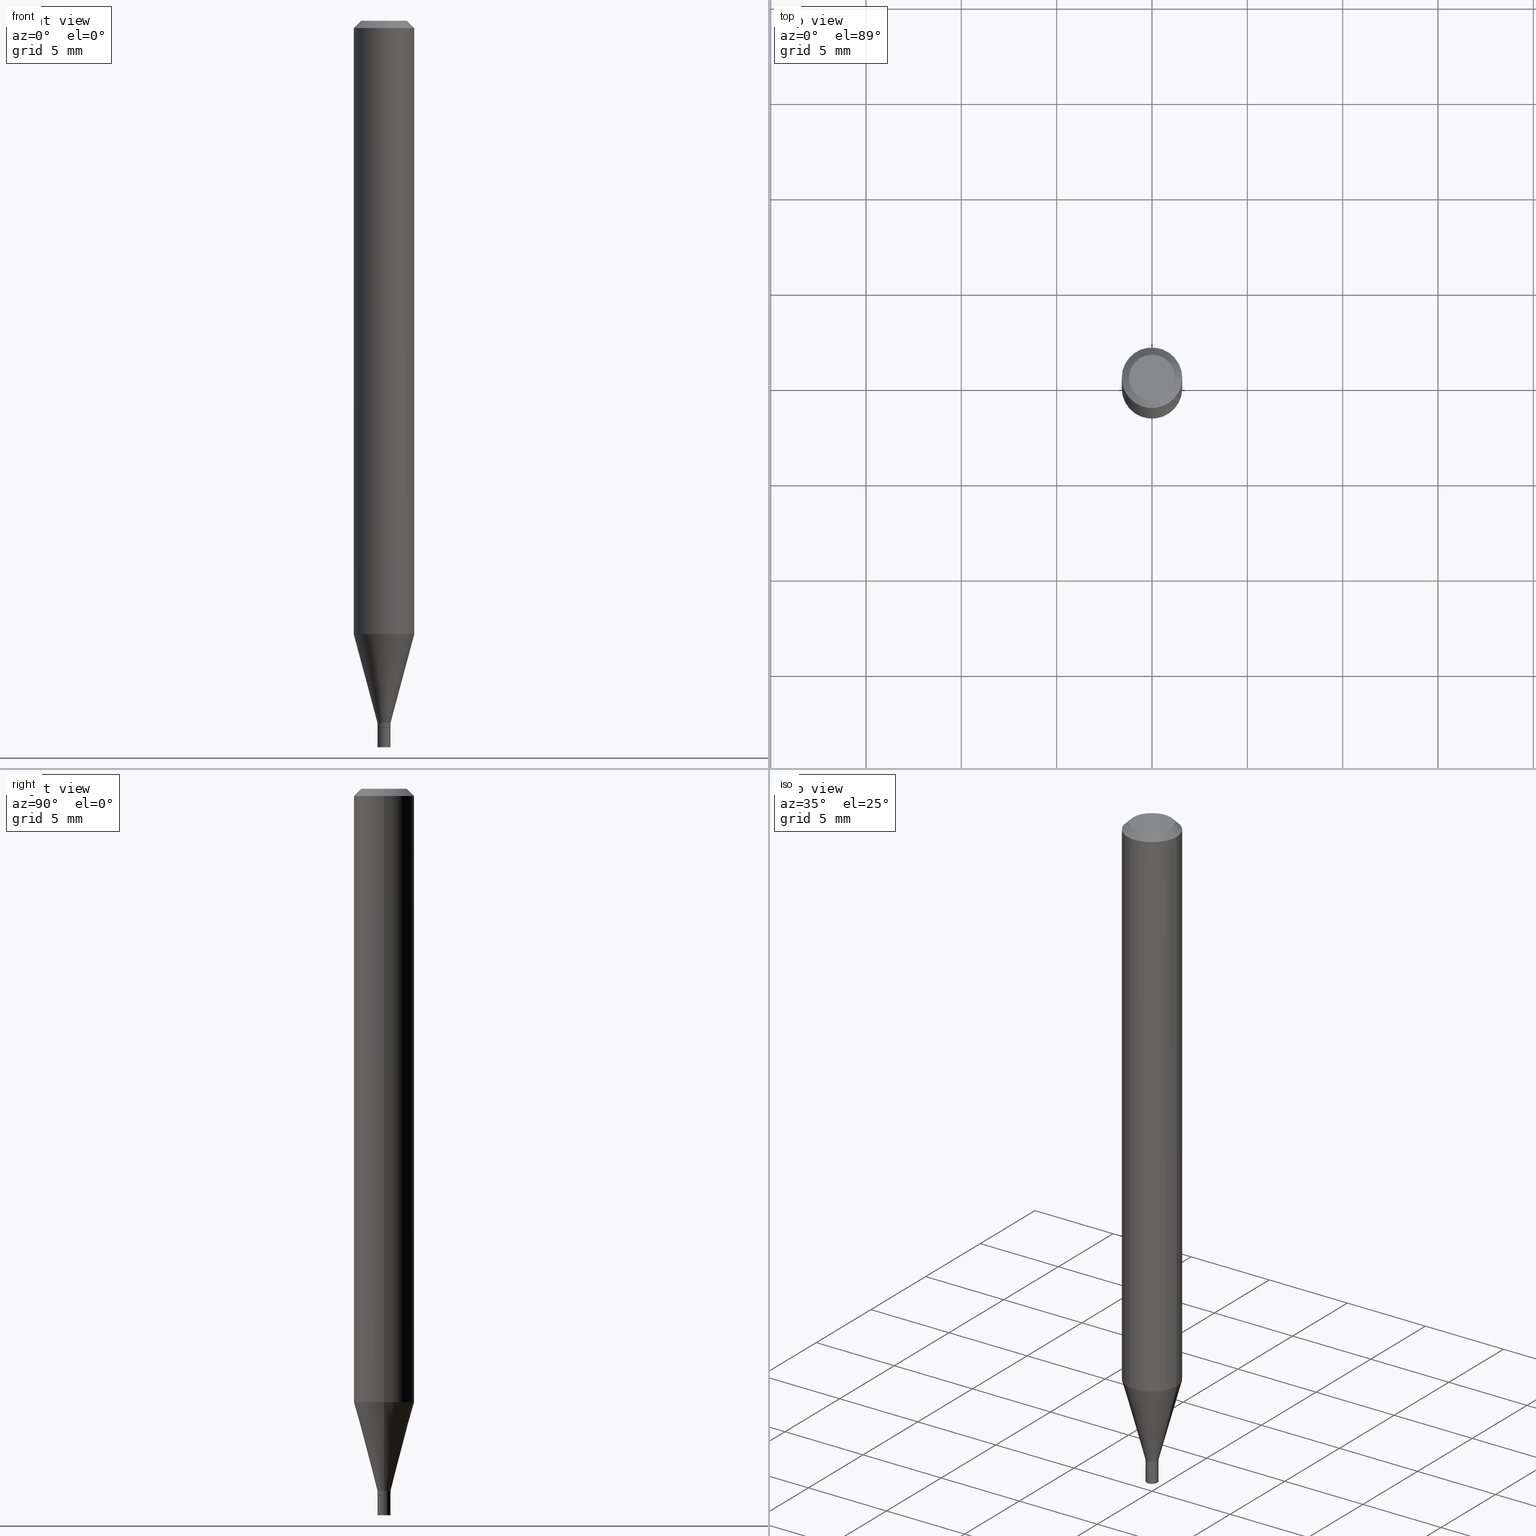
[diagram: canonical four-view strip — front | top / right | iso, engineering-drawing reading convention]
A machine part, canonical four-view strip (front | top / right | iso — engineering-drawing reading convention). The complete STEP part file that produces these views, byte-faithful:
ISO-10303-21;
HEADER;
FILE_DESCRIPTION (( 'STEP AP203' ),
    '1' );
FILE_NAME ('01107.STEP',
    '2024-03-19T22:58:30',
    ( '' ),
    ( '' ),
    'SwSTEP 2.0',
    'SolidWorks 2023',
    '' );
FILE_SCHEMA (( 'CONFIG_CONTROL_DESIGN' ));
ENDSEC;

DATA;
#1 = DIRECTION ( 'NONE',  ( 1.000000000000000000, -6.982962677686265133E-15, 0.000000000000000000 ) ) ;
#2 = ORIENTED_EDGE ( 'NONE', *, *, #55, .F. ) ;
#3 = CARTESIAN_POINT ( 'NONE',  ( 3.569161722627207033E-29, -5.095817014041571654E-15, -1.459500000000000020 ) ) ;
#4 = EDGE_LOOP ( 'NONE', ( #435, #453, #202, #21 ) ) ;
#5 = CARTESIAN_POINT ( 'NONE',  ( 0.000000000000000000, 0.000000000000000000, 0.000000000000000000 ) ) ;
#6 = CARTESIAN_POINT ( 'NONE',  ( -0.01300000000000000114, -5.000797231218647347E-15, -1.459500000000000020 ) ) ;
#7 = AXIS2_PLACEMENT_3D ( 'NONE', #79, #118, #369 ) ;
#8 = DIRECTION ( 'NONE',  ( 1.000000000000000000, -6.982962677686257244E-15, 0.000000000000000000 ) ) ;
#9 = MANIFOLD_SOLID_BREP ( 'Body-Move/Copy2[2]', #321 ) ;
#10 = ADVANCED_FACE ( 'NONE', ( #304 ), #454, .F. ) ;
#11 = VERTEX_POINT ( 'NONE', #436 ) ;
#12 = DATE_AND_TIME ( #47, #28 ) ;
#13 = LOCAL_TIME ( 18, 58, 29.00000000000000000, #299 ) ;
#14 = DIRECTION ( 'NONE',  ( -2.445468806185136597E-29, 3.491481338843145583E-15, 1.000000000000000000 ) ) ;
#15 = ORIENTED_EDGE ( 'NONE', *, *, #230, .F. ) ;
#16 = ADVANCED_FACE ( 'NONE', ( #215 ), #207, .T. ) ;
#17 = VERTEX_POINT ( 'NONE', #97 ) ;
#18 = CALENDAR_DATE ( 2024, 19, 3 ) ;
#19 = VECTOR ( 'NONE', #440, 39.37007874015748854 ) ;
#20 = ORIENTED_EDGE ( 'NONE', *, *, #203, .T. ) ;
#21 = ORIENTED_EDGE ( 'NONE', *, *, #338, .F. ) ;
#22 = COORDINATED_UNIVERSAL_TIME_OFFSET ( 5, 0, .BEHIND. ) ;
#23 = EDGE_CURVE ( 'NONE', #17, #281, #437, .T. ) ;
#24 = EDGE_LOOP ( 'NONE', ( #168, #382, #165, #195 ) ) ;
#25 = DIRECTION ( 'NONE',  ( 1.000000000000000000, -6.982962677686266711E-15, 0.000000000000000000 ) ) ;
#26 = AXIS2_PLACEMENT_3D ( 'NONE', #114, #33, #354 ) ;
#27 = CONICAL_SURFACE ( 'NONE', #35, 0.01300000000000000114, 0.7853981633974718157 ) ;
#28 = LOCAL_TIME ( 18, 58, 29.00000000000000000, #443 ) ;
#29 = DIRECTION ( 'NONE',  ( 1.000000000000000000, -6.982962677686262766E-15, 0.000000000000000000 ) ) ;
#30 = CARTESIAN_POINT ( 'NONE',  ( 3.544707034565356049E-29, -5.060902200653140005E-15, -1.449500000000000233 ) ) ;
#31 = DIRECTION ( 'NONE',  ( 1.000000000000000000, -6.982962677686257244E-15, 0.000000000000000000 ) ) ;
#32 = CARTESIAN_POINT ( 'NONE',  ( -0.01349999999999999985, -5.070596241825531305E-15, -1.500000000000000222 ) ) ;
#33 = DIRECTION ( 'NONE',  ( -2.445468806185136597E-29, 3.491481338843145583E-15, 1.000000000000000000 ) ) ;
#34 = PERSON_AND_ORGANIZATION_ROLE ( 'design_supplier' ) ;
#35 = AXIS2_PLACEMENT_3D ( 'NONE', #251, #287, #8 ) ;
#36 = DIRECTION ( 'NONE',  ( 1.000000000000000000, -6.982962677686262766E-15, 0.000000000000000000 ) ) ;
#37 = EDGE_LOOP ( 'NONE', ( #159, #229, #182, #133 ) ) ;
#38 = CARTESIAN_POINT ( 'NONE',  ( 0.06250000000000000000, -4.888073874380388472E-16, -0.01499999999999999944 ) ) ;
#39 = CC_DESIGN_PERSON_AND_ORGANIZATION_ASSIGNMENT ( #303, #201, ( #238 ) ) ;
#40 = PERSON_AND_ORGANIZATION ( #335, #120 ) ;
#41 = CARTESIAN_POINT ( 'NONE',  ( -1.537852810144857008E-44, 2.195646239660832005E-30, 6.288580767234829712E-16 ) ) ;
#42 = VECTOR ( 'NONE', #391, 39.37007874015748143 ) ;
#43 = AXIS2_PLACEMENT_3D ( 'NONE', #220, #158, #257 ) ;
#44 = EDGE_CURVE ( 'NONE', #205, #11, #82, .T. ) ;
#45 = PLANE ( 'NONE',  #43 ) ;
#46 = CARTESIAN_POINT ( 'NONE',  ( 3.668203209277705088E-31, -5.237222008264718399E-17, -0.01499999999999999944 ) ) ;
#47 = CALENDAR_DATE ( 2024, 19, 3 ) ;
#48 = CARTESIAN_POINT ( 'NONE',  ( -0.01349999999999999985, -5.070596241825531305E-15, -1.459500000000000020 ) ) ;
#49 = AXIS2_PLACEMENT_3D ( 'NONE', #107, #235, #103 ) ;
#50 = SECURITY_CLASSIFICATION ( '', '', #132 ) ;
#51 = ORIENTED_EDGE ( 'NONE', *, *, #328, .T. ) ;
#52 = CC_DESIGN_PERSON_AND_ORGANIZATION_ASSIGNMENT ( #179, #379, ( #50 ) ) ;
#53 = VERTEX_POINT ( 'NONE', #386 ) ;
#54 = ORIENTED_EDGE ( 'NONE', *, *, #216, .T. ) ;
#55 = EDGE_CURVE ( 'NONE', #281, #17, #183, .T. ) ;
#56 = ORIENTED_EDGE ( 'NONE', *, *, #452, .T. ) ;
#57 = EDGE_LOOP ( 'NONE', ( #88, #2 ) ) ;
#58 = CARTESIAN_POINT ( 'NONE',  ( -0.01300000000000000114, -5.003446458392758548E-15, -1.459500000000000020 ) ) ;
#59 = ORIENTED_EDGE ( 'NONE', *, *, #422, .F. ) ;
#60 = CLOSED_SHELL ( 'NONE', ( #16, #10, #225, #172 ) ) ;
#61 = CIRCLE ( 'NONE', #372, 0.04749999999999999362 ) ;
#62 = FACE_OUTER_BOUND ( 'NONE', #37, .T. ) ;
#63 = CC_DESIGN_DATE_AND_TIME_ASSIGNMENT ( #12, #418, ( #297 ) ) ;
#64 = CARTESIAN_POINT ( 'NONE',  ( 9.426999614880027831E-17, 0.01349999999999490323, -1.459500000000000020 ) ) ;
#65 = PRODUCT_DEFINITION_SHAPE ( 'NONE', 'NONE',  #297 ) ;
#66 = APPROVAL_ROLE ( '' ) ;
#67 = CARTESIAN_POINT ( 'NONE',  ( 3.097502956747977268E-29, -4.422413298891320100E-15, -1.266629510429125416 ) ) ;
#68 = DIRECTION ( 'NONE',  ( -2.445468806185136597E-29, 3.491481338843145583E-15, 1.000000000000000000 ) ) ;
#69 = AXIS2_PLACEMENT_3D ( 'NONE', #398, #288, #259 ) ;
#70 = FACE_OUTER_BOUND ( 'NONE', #413, .T. ) ;
#71 = EDGE_CURVE ( 'NONE', #374, #196, #396, .T. ) ;
#72 = PERSON_AND_ORGANIZATION ( #335, #120 ) ;
#73 = DIRECTION ( 'NONE',  ( -2.445468806185136597E-29, 3.491481338843145583E-15, 1.000000000000000000 ) ) ;
#74 = CARTESIAN_POINT ( 'NONE',  ( 3.668203209277705088E-31, -5.237222008264718399E-17, -0.01499999999999999944 ) ) ;
#75 = LINE ( 'NONE', #442, #285 ) ;
#76 = AXIS2_PLACEMENT_3D ( 'NONE', #173, #432, #1 ) ;
#77 = CARTESIAN_POINT ( 'NONE',  ( 3.544707034565356049E-29, -5.060902200653140005E-15, -1.449500000000000233 ) ) ;
#78 = FACE_OUTER_BOUND ( 'NONE', #341, .T. ) ;
#79 = CARTESIAN_POINT ( 'NONE',  ( 3.567938988224114792E-29, -5.094071273372150151E-15, -1.459000000000000297 ) ) ;
#80 = EDGE_LOOP ( 'NONE', ( #56, #87, #301, #226 ) ) ;
#81 = CYLINDRICAL_SURFACE ( 'NONE', #463, 0.01349999999999992005 ) ;
#82 = CIRCLE ( 'NONE', #124, 0.06250000000000000000 ) ;
#83 = ORIENTED_EDGE ( 'NONE', *, *, #338, .T. ) ;
#84 = ADVANCED_FACE ( 'NONE', ( #359 ), #457, .T. ) ;
#85 = AXIS2_PLACEMENT_3D ( 'NONE', #46, #244, #286 ) ;
#86 = LINE ( 'NONE', #446, #385 ) ;
#87 = ORIENTED_EDGE ( 'NONE', *, *, #197, .T. ) ;
#88 = ORIENTED_EDGE ( 'NONE', *, *, #23, .F. ) ;
#89 = APPROVAL ( #100, 'UNSPECIFIED' ) ;
#90 = ORIENTED_EDGE ( 'NONE', *, *, #328, .F. ) ;
#91 = CIRCLE ( 'NONE', #49, 0.01349999999999992005 ) ;
#92 = CC_DESIGN_SECURITY_CLASSIFICATION ( #50, ( #238 ) ) ;
#93 = ORIENTED_EDGE ( 'NONE', *, *, #191, .T. ) ;
#94 = CARTESIAN_POINT ( 'NONE',  ( 0.01349999999999999985, -5.190087010190336792E-15, -1.459500000000000020 ) ) ;
#95 = ORIENTED_EDGE ( 'NONE', *, *, #263, .T. ) ;
#96 =( NAMED_UNIT ( * ) SI_UNIT ( $, .STERADIAN. ) SOLID_ANGLE_UNIT ( ) );
#97 = CARTESIAN_POINT ( 'NONE',  ( 0.01300000000000000114, -5.186595528851492996E-15, -1.459500000000000020 ) ) ;
#98 = EDGE_CURVE ( 'NONE', #11, #205, #119, .T. ) ;
#99 = CIRCLE ( 'NONE', #76, 0.01349999999999992352 ) ;
#100 = APPROVAL_STATUS ( 'not_yet_approved' ) ;
#101 = DIRECTION ( 'NONE',  ( -2.438088387897960049E-29, 3.491481338843145188E-15, 1.000000000000000000 ) ) ;
#102 = PRODUCT_RELATED_PRODUCT_CATEGORY ( 'detail', '', ( #143 ) ) ;
#103 = DIRECTION ( 'NONE',  ( 1.000000000000000000, -6.982962677686266711E-15, 0.000000000000000000 ) ) ;
#104 = SHAPE_DEFINITION_REPRESENTATION ( #65, #232 ) ;
#105 = CARTESIAN_POINT ( 'NONE',  ( -0.01349999999999992352, -4.998148004044537724E-15, -1.459000000000000297 ) ) ;
#106 = VERTEX_POINT ( 'NONE', #38 ) ;
#107 = CARTESIAN_POINT ( 'NONE',  ( 3.544707034565356049E-29, -5.060902200653140005E-15, -1.449500000000000233 ) ) ;
#108 = ADVANCED_FACE ( 'NONE', ( #428 ), #331, .T. ) ;
#109 = COORDINATED_UNIVERSAL_TIME_OFFSET ( 5, 0, .BEHIND. ) ;
#110 = CARTESIAN_POINT ( 'NONE',  ( 3.569161722627207033E-29, -5.095817014041571654E-15, -1.459500000000000020 ) ) ;
#111 = VERTEX_POINT ( 'NONE', #240 ) ;
#112 = DIRECTION ( 'NONE',  ( 1.000000000000000000, -6.982962677686266711E-15, 0.000000000000000000 ) ) ;
#113 = AXIS2_PLACEMENT_3D ( 'NONE', #64, #317, #283 ) ;
#114 = CARTESIAN_POINT ( 'NONE',  ( 0.000000000000000000, 0.000000000000000000, 0.000000000000000000 ) ) ;
#115 = FACE_OUTER_BOUND ( 'NONE', #380, .T. ) ;
#116 = EDGE_CURVE ( 'NONE', #128, #308, #99, .T. ) ;
#117 = DIRECTION ( 'NONE',  ( -2.445468806185136597E-29, 3.491481338843145583E-15, 1.000000000000000000 ) ) ;
#118 = DIRECTION ( 'NONE',  ( -2.445468806185136597E-29, 3.491481338843145583E-15, 1.000000000000000000 ) ) ;
#119 = CIRCLE ( 'NONE', #337, 0.06250000000000000000 ) ;
#120 = ORGANIZATION ( 'UNSPECIFIED', 'UNSPECIFIED', '' ) ;
#121 = EDGE_LOOP ( 'NONE', ( #54, #221 ) ) ;
#122 = ADVANCED_FACE ( 'NONE', ( #210 ), #309, .T. ) ;
#123 = PERSON_AND_ORGANIZATION_ROLE ( 'design_owner' ) ;
#124 = AXIS2_PLACEMENT_3D ( 'NONE', #465, #247, #29 ) ;
#125 = VERTEX_POINT ( 'NONE', #389 ) ;
#126 = VECTOR ( 'NONE', #214, 39.37007874015748854 ) ;
#127 = APPROVAL_PERSON_ORGANIZATION ( #164, #252, #334 ) ;
#128 = VERTEX_POINT ( 'NONE', #105 ) ;
#129 = DATE_AND_TIME ( #18, #13 ) ;
#130 = ADVANCED_FACE ( 'NONE', ( #62 ), #345, .T. ) ;
#131 = EDGE_LOOP ( 'NONE', ( #373, #163, #20, #292 ) ) ;
#132 = SECURITY_CLASSIFICATION_LEVEL ( 'unclassified' ) ;
#133 = ORIENTED_EDGE ( 'NONE', *, *, #116, .F. ) ;
#134 = DATE_TIME_ROLE ( 'classification_date' ) ;
#135 = AXIS2_PLACEMENT_3D ( 'NONE', #3, #350, #394 ) ;
#136 = CARTESIAN_POINT ( 'NONE',  ( 3.668203209277704895E-29, -5.237222008264718177E-15, -1.500000000000000222 ) ) ;
#137 = ORIENTED_EDGE ( 'NONE', *, *, #456, .T. ) ;
#138 =( CONVERSION_BASED_UNIT ( 'INCH', #313 ) LENGTH_UNIT ( ) NAMED_UNIT ( #194 ) );
#139 = CC_DESIGN_PERSON_AND_ORGANIZATION_ASSIGNMENT ( #415, #227, ( #297 ) ) ;
#140 = DIRECTION ( 'NONE',  ( -2.445468806185136597E-29, 3.491481338843145583E-15, 1.000000000000000000 ) ) ;
#141 = DIRECTION ( 'NONE',  ( -2.445468806185136877E-29, 3.491481338843145188E-15, 1.000000000000000000 ) ) ;
#142 = DIRECTION ( 'NONE',  ( 1.000000000000000000, -6.982962677686265922E-15, 4.876176775795935793E-29 ) ) ;
#143 = PRODUCT ( '01107', '01107', '', ( #322 ) ) ;
#144 = CONICAL_SURFACE ( 'NONE', #85, 0.06250000000000000000, 0.7853981633974274068 ) ;
#145 = CALENDAR_DATE ( 2024, 19, 3 ) ;
#146 = DIRECTION ( 'NONE',  ( 1.000000000000000000, -6.982962677686257244E-15, 0.000000000000000000 ) ) ;
#147 = DIRECTION ( 'NONE',  ( 1.000000000000000000, -6.982962677686266711E-15, 0.000000000000000000 ) ) ;
#148 = FACE_OUTER_BOUND ( 'NONE', #346, .T. ) ;
#149 = CC_DESIGN_APPROVAL ( #252, ( #297 ) ) ;
#150 = AXIS2_PLACEMENT_3D ( 'NONE', #459, #425, #236 ) ;
#151 = DIRECTION ( 'NONE',  ( -2.445468806185136597E-29, 3.491481338843145583E-15, 1.000000000000000000 ) ) ;
#152 = EDGE_CURVE ( 'NONE', #308, #53, #180, .T. ) ;
#153 = CARTESIAN_POINT ( 'NONE',  ( 0.01349999999999999985, -9.426999614876459468E-17, 6.582838647324512550E-31 ) ) ;
#154 = DIRECTION ( 'NONE',  ( 1.000000000000000000, -6.982962677686266711E-15, 0.000000000000000000 ) ) ;
#155 = CYLINDRICAL_SURFACE ( 'NONE', #69, 0.06250000000000000000 ) ;
#156 = CONICAL_SURFACE ( 'NONE', #276, 0.01349999999999992005, 0.2617993877991499629 ) ;
#157 = ADVANCED_FACE ( 'NONE', ( #434 ), #174, .F. ) ;
#158 = DIRECTION ( 'NONE',  ( 2.438088387897960049E-29, -3.491481338843145188E-15, -1.000000000000000000 ) ) ;
#159 = ORIENTED_EDGE ( 'NONE', *, *, #390, .F. ) ;
#160 = MANIFOLD_SOLID_BREP ( 'Body-Move/Copy2[1]', #60 ) ;
#161 = ORIENTED_EDGE ( 'NONE', *, *, #371, .T. ) ;
#162 = AXIS2_PLACEMENT_3D ( 'NONE', #393, #68, #358 ) ;
#163 = ORIENTED_EDGE ( 'NONE', *, *, #98, .T. ) ;
#164 = PERSON_AND_ORGANIZATION ( #335, #120 ) ;
#165 = ORIENTED_EDGE ( 'NONE', *, *, #452, .F. ) ;
#166 = CALENDAR_DATE ( 2024, 19, 3 ) ;
#167 = CYLINDRICAL_SURFACE ( 'NONE', #162, 0.06250000000000000000 ) ;
#168 = ORIENTED_EDGE ( 'NONE', *, *, #230, .T. ) ;
#169 = AXIS2_PLACEMENT_3D ( 'NONE', #400, #325, #333 ) ;
#170 = CIRCLE ( 'NONE', #357, 0.01349999999999992005 ) ;
#171 = DIRECTION ( 'NONE',  ( -0.7071067811865326957, 2.468850131082102049E-15, -0.7071067811865622277 ) ) ;
#172 = ADVANCED_FACE ( 'NONE', ( #70 ), #213, .F. ) ;
#173 = CARTESIAN_POINT ( 'NONE',  ( 3.567938988224114792E-29, -5.094071273372150151E-15, -1.459000000000000297 ) ) ;
#174 = PLANE ( 'NONE',  #377 ) ;
#175 = PERSON_AND_ORGANIZATION ( #335, #120 ) ;
#176 = LINE ( 'NONE', #351, #212 ) ;
#177 = DIRECTION ( 'NONE',  ( -2.445468806185136597E-29, 3.491481338843145583E-15, 1.000000000000000000 ) ) ;
#178 = APPLICATION_PROTOCOL_DEFINITION ( 'international standard', 'config_control_design', 1994, #339 ) ;
#179 = PERSON_AND_ORGANIZATION ( #335, #120 ) ;
#180 = LINE ( 'NONE', #181, #237 ) ;
#181 = CARTESIAN_POINT ( 'NONE',  ( 0.01349999999999992005, -9.426999614876405233E-17, 6.582838647324474890E-31 ) ) ;
#182 = ORIENTED_EDGE ( 'NONE', *, *, #282, .T. ) ;
#183 = CIRCLE ( 'NONE', #449, 0.01300000000000000114 ) ;
#184 = ADVANCED_FACE ( 'NONE', ( #148 ), #155, .T. ) ;
#185 = VECTOR ( 'NONE', #278, 39.37007874015748143 ) ;
#186 = AXIS2_PLACEMENT_3D ( 'NONE', #5, #189, #249 ) ;
#187 = CARTESIAN_POINT ( 'NONE',  ( 3.569161722627207033E-29, -5.095817014041571654E-15, -1.459500000000000020 ) ) ;
#188 = CARTESIAN_POINT ( 'NONE',  ( 0.000000000000000000, 0.000000000000000000, 0.000000000000000000 ) ) ;
#189 = DIRECTION ( 'NONE',  ( 0.000000000000000000, 0.000000000000000000, 1.000000000000000000 ) ) ;
#190 = DIRECTION ( 'NONE',  ( 0.7071067811865642261, -2.468850131082431399E-15, 0.7071067811865309194 ) ) ;
#191 = EDGE_CURVE ( 'NONE', #417, #106, #395, .T. ) ;
#192 = DIRECTION ( 'NONE',  ( -2.445468806185136597E-29, 3.491481338843145583E-15, 1.000000000000000000 ) ) ;
#193 = AXIS2_PLACEMENT_3D ( 'NONE', #74, #151, #154 ) ;
#194 = DIMENSIONAL_EXPONENTS ( 1.000000000000000000, 0.000000000000000000, 0.000000000000000000, 0.000000000000000000, 0.000000000000000000, 0.000000000000000000, 0.000000000000000000 ) ;
#195 = ORIENTED_EDGE ( 'NONE', *, *, #152, .F. ) ;
#196 = VERTEX_POINT ( 'NONE', #48 ) ;
#197 = EDGE_CURVE ( 'NONE', #330, #11, #295, .T. ) ;
#198 = ORIENTED_EDGE ( 'NONE', *, *, #416, .F. ) ;
#199 = CIRCLE ( 'NONE', #464, 0.04749999999999999362 ) ;
#200 = ORIENTED_EDGE ( 'NONE', *, *, #44, .T. ) ;
#201 = PERSON_AND_ORGANIZATION_ROLE ( 'creator' ) ;
#202 = ORIENTED_EDGE ( 'NONE', *, *, #316, .T. ) ;
#203 = EDGE_CURVE ( 'NONE', #205, #106, #447, .T. ) ;
#204 = FACE_OUTER_BOUND ( 'NONE', #131, .T. ) ;
#205 = VERTEX_POINT ( 'NONE', #291 ) ;
#206 =( LENGTH_UNIT ( ) NAMED_UNIT ( * ) SI_UNIT ( $, .METRE. ) );
#207 = CYLINDRICAL_SURFACE ( 'NONE', #26, 0.01349999999999999985 ) ;
#208 = ADVANCED_FACE ( 'NONE', ( #403 ), #45, .F. ) ;
#209 = CARTESIAN_POINT ( 'NONE',  ( 3.569161722627207033E-29, -5.095817014041571654E-15, -1.459500000000000020 ) ) ;
#210 = FACE_OUTER_BOUND ( 'NONE', #24, .T. ) ;
#211 = CARTESIAN_POINT ( 'NONE',  ( -0.01349999999999992005, 9.592326932761295701E-17, -6.640562371844083793E-31 ) ) ;
#212 = VECTOR ( 'NONE', #348, 39.37007874015748854 ) ;
#213 = PLANE ( 'NONE',  #113 ) ;
#214 = DIRECTION ( 'NONE',  ( 0.2588190451025212391, 1.565188264969622362E-15, 0.9659258262890679791 ) ) ;
#215 = FACE_OUTER_BOUND ( 'NONE', #256, .T. ) ;
#216 = EDGE_CURVE ( 'NONE', #111, #420, #61, .T. ) ;
#217 = DIRECTION ( 'NONE',  ( -2.445468806185136877E-29, 3.491481338843145188E-15, 1.000000000000000000 ) ) ;
#218 = CIRCLE ( 'NONE', #401, 0.01349999999999999985 ) ;
#219 = CARTESIAN_POINT ( 'NONE',  ( 0.000000000000000000, 0.000000000000000000, 0.000000000000000000 ) ) ;
#220 = CARTESIAN_POINT ( 'NONE',  ( 3.316907271900976096E-16, 0.04749999999999999362, 1.485836747666920892E-16 ) ) ;
#221 = ORIENTED_EDGE ( 'NONE', *, *, #444, .T. ) ;
#222 = DIRECTION ( 'NONE',  ( -2.445468806185136597E-29, 3.491481338843145583E-15, 1.000000000000000000 ) ) ;
#223 = CIRCLE ( 'NONE', #267, 0.01349999999999999985 ) ;
#224 = ORIENTED_EDGE ( 'NONE', *, *, #375, .T. ) ;
#225 = ADVANCED_FACE ( 'NONE', ( #366 ), #408, .T. ) ;
#226 = ORIENTED_EDGE ( 'NONE', *, *, #364, .F. ) ;
#227 = PERSON_AND_ORGANIZATION_ROLE ( 'creator' ) ;
#228 = VECTOR ( 'NONE', #250, 39.37007874015748143 ) ;
#229 = ORIENTED_EDGE ( 'NONE', *, *, #55, .T. ) ;
#230 = EDGE_CURVE ( 'NONE', #308, #128, #293, .T. ) ;
#231 = ORIENTED_EDGE ( 'NONE', *, *, #23, .T. ) ;
#232 = ADVANCED_BREP_SHAPE_REPRESENTATION ( '01107', ( #160, #9, #186 ), #387 ) ;
#233 = DESIGN_CONTEXT ( 'detailed design', #290, 'design' ) ;
#234 = ORIENTED_EDGE ( 'NONE', *, *, #282, .F. ) ;
#235 = DIRECTION ( 'NONE',  ( -2.445468806185136597E-29, 3.491481338843145583E-15, 1.000000000000000000 ) ) ;
#236 = DIRECTION ( 'NONE',  ( 1.000000000000000000, -6.982962677686267499E-15, 4.876176775795936353E-29 ) ) ;
#237 = VECTOR ( 'NONE', #315, 39.37007874015748143 ) ;
#238 = PRODUCT_DEFINITION_FORMATION_WITH_SPECIFIED_SOURCE ( 'ANY', '', #143, .NOT_KNOWN. ) ;
#239 = APPROVAL_ROLE ( '' ) ;
#240 = CARTESIAN_POINT ( 'NONE',  ( -0.04749999999999999362, 3.578768372314221353E-16, 6.288580767234806046E-16 ) ) ;
#241 = EDGE_CURVE ( 'NONE', #374, #125, #300, .T. ) ;
#242 = ORIENTED_EDGE ( 'NONE', *, *, #98, .F. ) ;
#243 = LINE ( 'NONE', #58, #185 ) ;
#244 = DIRECTION ( 'NONE',  ( 2.445468806185136597E-29, -3.491481338843145583E-15, -1.000000000000000000 ) ) ;
#245 = CARTESIAN_POINT ( 'NONE',  ( 3.544707034565356049E-29, -5.060902200653140005E-15, -1.449500000000000233 ) ) ;
#246 = CARTESIAN_POINT ( 'NONE',  ( 0.01349999999999992005, -5.155172196801903565E-15, -1.449500000000000233 ) ) ;
#247 = DIRECTION ( 'NONE',  ( -2.445468806185136597E-29, 3.491481338843145583E-15, 1.000000000000000000 ) ) ;
#248 = ADVANCED_FACE ( 'NONE', ( #115 ), #81, .T. ) ;
#249 = DIRECTION ( 'NONE',  ( 1.000000000000000000, 0.000000000000000000, 0.000000000000000000 ) ) ;
#250 = DIRECTION ( 'NONE',  ( -2.445468806185136877E-29, 3.491481338843145188E-15, 1.000000000000000000 ) ) ;
#251 = CARTESIAN_POINT ( 'NONE',  ( 3.569161722627207033E-29, -5.095817014041571654E-15, -1.459500000000000020 ) ) ;
#252 = APPROVAL ( #451, 'UNSPECIFIED' ) ;
#253 = DIRECTION ( 'NONE',  ( 1.000000000000000000, -6.982962677686297476E-15, 0.000000000000000000 ) ) ;
#254 = AXIS2_PLACEMENT_3D ( 'NONE', #219, #192, #329 ) ;
#255 = CARTESIAN_POINT ( 'NONE',  ( -0.01349999999999992005, -4.964978931325527578E-15, -1.449500000000000233 ) ) ;
#256 = EDGE_LOOP ( 'NONE', ( #409, #302, #378, #270 ) ) ;
#257 = DIRECTION ( 'NONE',  ( -1.000000000000000000, 6.982962677686265922E-15, -4.876176775795935793E-29 ) ) ;
#258 = DIRECTION ( 'NONE',  ( -2.445468806185136877E-29, 3.491481338843145188E-15, 1.000000000000000000 ) ) ;
#259 = DIRECTION ( 'NONE',  ( 1.000000000000000000, -6.982962677686266711E-15, 4.876176775795935793E-29 ) ) ;
#260 = CIRCLE ( 'NONE', #323, 0.01349999999999999985 ) ;
#261 = APPROVAL_PERSON_ORGANIZATION ( #314, #426, #66 ) ;
#262 = ORIENTED_EDGE ( 'NONE', *, *, #197, .F. ) ;
#263 = EDGE_CURVE ( 'NONE', #450, #196, #223, .T. ) ;
#264 = EDGE_LOOP ( 'NONE', ( #376, #318, #137, #93 ) ) ;
#265 = APPROVAL_DATE_TIME ( #129, #252 ) ;
#266 = EDGE_LOOP ( 'NONE', ( #59, #298 ) ) ;
#267 = AXIS2_PLACEMENT_3D ( 'NONE', #187, #327, #362 ) ;
#268 = DATE_AND_TIME ( #462, #320 ) ;
#269 = LINE ( 'NONE', #211, #363 ) ;
#270 = ORIENTED_EDGE ( 'NONE', *, *, #316, .F. ) ;
#271 =( NAMED_UNIT ( * ) PLANE_ANGLE_UNIT ( ) SI_UNIT ( $, .RADIAN. ) );
#272 = DIRECTION ( 'NONE',  ( 2.445468806185136597E-29, -3.491481338843145583E-15, -1.000000000000000000 ) ) ;
#273 = DIRECTION ( 'NONE',  ( 1.000000000000000000, -6.982962677686297476E-15, 0.000000000000000000 ) ) ;
#274 = CARTESIAN_POINT ( 'NONE',  ( -0.01349999999999999985, 9.592326932761352401E-17, -6.640562371844122329E-31 ) ) ;
#275 = ADVANCED_FACE ( 'NONE', ( #319 ), #27, .T. ) ;
#276 = AXIS2_PLACEMENT_3D ( 'NONE', #77, #222, #368 ) ;
#277 = DIRECTION ( 'NONE',  ( -1.000000000000000000, 6.982962677686266711E-15, 0.000000000000000000 ) ) ;
#278 = DIRECTION ( 'NONE',  ( -0.7071067811865642261, 7.493145998870414114E-15, 0.7071067811865309194 ) ) ;
#279 = APPROVAL_STATUS ( 'not_yet_approved' ) ;
#280 = DIRECTION ( 'NONE',  ( -2.438088387897960049E-29, 3.491481338843145188E-15, 1.000000000000000000 ) ) ;
#281 = VERTEX_POINT ( 'NONE', #6 ) ;
#282 = EDGE_CURVE ( 'NONE', #17, #308, #75, .T. ) ;
#283 = DIRECTION ( 'NONE',  ( -1.000000000000000000, 6.982962677686265922E-15, -4.876176775795935793E-29 ) ) ;
#284 = AXIS2_PLACEMENT_3D ( 'NONE', #209, #140, #146 ) ;
#285 = VECTOR ( 'NONE', #190, 39.37007874015748143 ) ;
#286 = DIRECTION ( 'NONE',  ( -1.000000000000000000, 6.982962677686266711E-15, 0.000000000000000000 ) ) ;
#287 = DIRECTION ( 'NONE',  ( -2.445468806185136597E-29, 3.491481338843145583E-15, 1.000000000000000000 ) ) ;
#288 = DIRECTION ( 'NONE',  ( -2.445468806185136597E-29, 3.491481338843145583E-15, 1.000000000000000000 ) ) ;
#289 = ADVANCED_FACE ( 'NONE', ( #78 ), #144, .T. ) ;
#290 = APPLICATION_CONTEXT ( 'configuration controlled 3d designs of mechanical parts and assemblies' ) ;
#291 = CARTESIAN_POINT ( 'NONE',  ( 0.06249999999999999306, -4.858848466246711769E-15, -1.266629510429125416 ) ) ;
#292 = ORIENTED_EDGE ( 'NONE', *, *, #191, .F. ) ;
#293 = CIRCLE ( 'NONE', #7, 0.01349999999999992352 ) ;
#294 = DIRECTION ( 'NONE',  ( -2.445468806185136597E-29, 3.491481338843145583E-15, 1.000000000000000000 ) ) ;
#295 = LINE ( 'NONE', #255, #19 ) ;
#296 = DIRECTION ( 'NONE',  ( 1.000000000000000000, -6.982962677686267499E-15, 4.852736867747366768E-29 ) ) ;
#297 = PRODUCT_DEFINITION ( 'UNKNOWN', '', #238, #233 ) ;
#298 = ORIENTED_EDGE ( 'NONE', *, *, #241, .F. ) ;
#299 = COORDINATED_UNIVERSAL_TIME_OFFSET ( 5, 0, .BEHIND. ) ;
#300 = CIRCLE ( 'NONE', #169, 0.01349999999999999985 ) ;
#301 = ORIENTED_EDGE ( 'NONE', *, *, #44, .F. ) ;
#302 = ORIENTED_EDGE ( 'NONE', *, *, #71, .T. ) ;
#303 = PERSON_AND_ORGANIZATION ( #335, #120 ) ;
#304 = FACE_OUTER_BOUND ( 'NONE', #266, .T. ) ;
#305 = CARTESIAN_POINT ( 'NONE',  ( -1.537852810144857008E-44, 2.195646239660832005E-30, 6.288580767234829712E-16 ) ) ;
#306 = AXIS2_PLACEMENT_3D ( 'NONE', #424, #101, #311 ) ;
#307 = AXIS2_PLACEMENT_3D ( 'NONE', #245, #73, #147 ) ;
#308 = VERTEX_POINT ( 'NONE', #397 ) ;
#309 = CYLINDRICAL_SURFACE ( 'NONE', #150, 0.01349999999999992005 ) ;
#310 = CARTESIAN_POINT ( 'NONE',  ( 3.569161722627207033E-29, -5.095817014041571654E-15, -1.459500000000000020 ) ) ;
#311 = DIRECTION ( 'NONE',  ( 1.000000000000000000, -6.982962677686265922E-15, 4.876176775795935793E-29 ) ) ;
#312 = VECTOR ( 'NONE', #171, 39.37007874015748854 ) ;
#313 = LENGTH_MEASURE_WITH_UNIT ( LENGTH_MEASURE( 0.02539999999999999897 ), #206 );
#314 = PERSON_AND_ORGANIZATION ( #335, #120 ) ;
#315 = DIRECTION ( 'NONE',  ( -2.445468806185136877E-29, 3.491481338843145188E-15, 1.000000000000000000 ) ) ;
#316 = EDGE_CURVE ( 'NONE', #125, #450, #441, .T. ) ;
#317 = DIRECTION ( 'NONE',  ( 2.438088387897960049E-29, -3.491481338843145188E-15, -1.000000000000000000 ) ) ;
#318 = ORIENTED_EDGE ( 'NONE', *, *, #216, .F. ) ;
#319 = FACE_OUTER_BOUND ( 'NONE', #392, .T. ) ;
#320 = LOCAL_TIME ( 18, 58, 29.00000000000000000, #342 ) ;
#321 = CLOSED_SHELL ( 'NONE', ( #122, #275, #289, #184, #108, #355, #406, #84, #208, #157, #130, #248 ) ) ;
#322 = MECHANICAL_CONTEXT ( 'NONE', #339, 'mechanical' ) ;
#323 = AXIS2_PLACEMENT_3D ( 'NONE', #365, #117, #253 ) ;
#324 = LOCAL_TIME ( 18, 58, 29.00000000000000000, #109 ) ;
#325 = DIRECTION ( 'NONE',  ( -2.445468806185136597E-29, 3.491481338843145583E-15, 1.000000000000000000 ) ) ;
#326 = CARTESIAN_POINT ( 'NONE',  ( -0.01349999999999992005, -4.471651510183392531E-15, -1.449500000000000233 ) ) ;
#327 = DIRECTION ( 'NONE',  ( -2.445468806185136597E-29, 3.491481338843145583E-15, 1.000000000000000000 ) ) ;
#328 = EDGE_CURVE ( 'NONE', #106, #417, #411, .T. ) ;
#329 = DIRECTION ( 'NONE',  ( 1.000000000000000000, -6.982962677686266711E-15, 4.876176775795935232E-29 ) ) ;
#330 = VERTEX_POINT ( 'NONE', #326 ) ;
#331 = CONICAL_SURFACE ( 'NONE', #307, 0.01349999999999992005, 0.2617993877991499629 ) ;
#332 = LINE ( 'NONE', #246, #126 ) ;
#333 = DIRECTION ( 'NONE',  ( 1.000000000000000000, -6.982962677686297476E-15, 0.000000000000000000 ) ) ;
#334 = APPROVAL_ROLE ( '' ) ;
#335 = PERSON ( 'UNSPECIFIED', 'UNSPECIFIED', 'UNSPECIFIED', ('UNSPECIFIED'), ('UNSPECIFIED'), ('UNSPECIFIED') ) ;
#336 = ORIENTED_EDGE ( 'NONE', *, *, #383, .T. ) ;
#337 = AXIS2_PLACEMENT_3D ( 'NONE', #67, #177, #36 ) ;
#338 = EDGE_CURVE ( 'NONE', #196, #450, #260, .T. ) ;
#339 = APPLICATION_CONTEXT ( 'configuration controlled 3d designs of mechanical parts and assemblies' ) ;
#340 = ORIENTED_EDGE ( 'NONE', *, *, #444, .F. ) ;
#341 = EDGE_LOOP ( 'NONE', ( #340, #336, #51, #433 ) ) ;
#342 = COORDINATED_UNIVERSAL_TIME_OFFSET ( 5, 0, .BEHIND. ) ;
#343 = DIRECTION ( 'NONE',  ( -2.445468806185136597E-29, 3.491481338843145583E-15, 1.000000000000000000 ) ) ;
#344 = CC_DESIGN_APPROVAL ( #89, ( #238 ) ) ;
#345 = CONICAL_SURFACE ( 'NONE', #135, 0.01300000000000000114, 0.7853981633974718157 ) ;
#346 = EDGE_LOOP ( 'NONE', ( #200, #161, #90, #360 ) ) ;
#347 = LOCAL_TIME ( 18, 58, 29.00000000000000000, #22 ) ;
#348 = DIRECTION ( 'NONE',  ( 0.7071067811865326957, -7.319954787623205558E-15, -0.7071067811865622277 ) ) ;
#349 = CC_DESIGN_PERSON_AND_ORGANIZATION_ASSIGNMENT ( #40, #34, ( #238 ) ) ;
#350 = DIRECTION ( 'NONE',  ( -2.445468806185136597E-29, 3.491481338843145583E-15, 1.000000000000000000 ) ) ;
#351 = CARTESIAN_POINT ( 'NONE',  ( 0.06250000000000000000, -4.811533449433679005E-16, -0.01499999999999999944 ) ) ;
#352 = CARTESIAN_POINT ( 'NONE',  ( 3.668203209277705088E-31, -5.237222008264718399E-17, -0.01499999999999999944 ) ) ;
#353 = DATE_AND_TIME ( #145, #347 ) ;
#354 = DIRECTION ( 'NONE',  ( 1.000000000000000000, -6.982962677686266711E-15, 4.876176775795935232E-29 ) ) ;
#355 = ADVANCED_FACE ( 'NONE', ( #402 ), #156, .T. ) ;
#356 = VECTOR ( 'NONE', #217, 39.37007874015748143 ) ;
#357 = AXIS2_PLACEMENT_3D ( 'NONE', #30, #343, #25 ) ;
#358 = DIRECTION ( 'NONE',  ( 1.000000000000000000, -6.982962677686266711E-15, 4.876176775795935793E-29 ) ) ;
#359 = FACE_OUTER_BOUND ( 'NONE', #264, .T. ) ;
#360 = ORIENTED_EDGE ( 'NONE', *, *, #203, .F. ) ;
#361 = DIRECTION ( 'NONE',  ( 1.000000000000000000, -6.982962677686267499E-15, 4.876176775795936353E-29 ) ) ;
#362 = DIRECTION ( 'NONE',  ( 1.000000000000000000, -6.982962677686297476E-15, 0.000000000000000000 ) ) ;
#363 = VECTOR ( 'NONE', #141, 39.37007874015748143 ) ;
#364 = EDGE_CURVE ( 'NONE', #53, #205, #332, .T. ) ;
#365 = CARTESIAN_POINT ( 'NONE',  ( 3.569161722627207033E-29, -5.095817014041571654E-15, -1.459500000000000020 ) ) ;
#366 = FACE_OUTER_BOUND ( 'NONE', #4, .T. ) ;
#367 = ORIENTED_EDGE ( 'NONE', *, *, #152, .T. ) ;
#368 = DIRECTION ( 'NONE',  ( 1.000000000000000000, -6.982962677686266711E-15, 0.000000000000000000 ) ) ;
#369 = DIRECTION ( 'NONE',  ( 1.000000000000000000, -6.982962677686265133E-15, 0.000000000000000000 ) ) ;
#370 = ORIENTED_EDGE ( 'NONE', *, *, #375, .F. ) ;
#371 = EDGE_CURVE ( 'NONE', #11, #417, #86, .T. ) ;
#372 = AXIS2_PLACEMENT_3D ( 'NONE', #41, #407, #296 ) ;
#373 = ORIENTED_EDGE ( 'NONE', *, *, #371, .F. ) ;
#374 = VERTEX_POINT ( 'NONE', #32 ) ;
#375 = EDGE_CURVE ( 'NONE', #330, #53, #91, .T. ) ;
#376 = ORIENTED_EDGE ( 'NONE', *, *, #383, .F. ) ;
#377 = AXIS2_PLACEMENT_3D ( 'NONE', #310, #280, #142 ) ;
#378 = ORIENTED_EDGE ( 'NONE', *, *, #263, .F. ) ;
#379 = PERSON_AND_ORGANIZATION_ROLE ( 'classification_officer' ) ;
#380 = EDGE_LOOP ( 'NONE', ( #198, #458, #367, #370 ) ) ;
#381 = CARTESIAN_POINT ( 'NONE',  ( -0.06250000000000000000, 3.840629472727444916E-16, -0.01499999999999999944 ) ) ;
#382 = ORIENTED_EDGE ( 'NONE', *, *, #416, .T. ) ;
#383 = EDGE_CURVE ( 'NONE', #420, #106, #176, .T. ) ;
#384 = CARTESIAN_POINT ( 'NONE',  ( -0.06250000000000000000, -1.793303549636921171E-15, -0.01499999999999999944 ) ) ;
#385 = VECTOR ( 'NONE', #258, 39.37007874015748143 ) ;
#386 = CARTESIAN_POINT ( 'NONE',  ( 0.01349999999999992005, -5.155172196801903565E-15, -1.449500000000000233 ) ) ;
#387 =( GEOMETRIC_REPRESENTATION_CONTEXT ( 3 ) GLOBAL_UNCERTAINTY_ASSIGNED_CONTEXT ( ( #423 ) ) GLOBAL_UNIT_ASSIGNED_CONTEXT ( ( #138, #271, #96 ) ) REPRESENTATION_CONTEXT ( 'NONE', 'WORKASPACE' ) );
#388 = LINE ( 'NONE', #381, #312 ) ;
#389 = CARTESIAN_POINT ( 'NONE',  ( 0.01349999999999999985, -5.331492004413483314E-15, -1.500000000000000222 ) ) ;
#390 = EDGE_CURVE ( 'NONE', #281, #128, #243, .T. ) ;
#391 = DIRECTION ( 'NONE',  ( -2.445468806185136877E-29, 3.491481338843145188E-15, 1.000000000000000000 ) ) ;
#392 = EDGE_LOOP ( 'NONE', ( #231, #414, #15, #234 ) ) ;
#393 = CARTESIAN_POINT ( 'NONE',  ( 0.000000000000000000, 0.000000000000000000, 0.000000000000000000 ) ) ;
#394 = DIRECTION ( 'NONE',  ( 1.000000000000000000, -6.982962677686257244E-15, 0.000000000000000000 ) ) ;
#395 = CIRCLE ( 'NONE', #193, 0.06250000000000000000 ) ;
#396 = LINE ( 'NONE', #274, #42 ) ;
#397 = CARTESIAN_POINT ( 'NONE',  ( 0.01349999999999992352, -5.188341269520914499E-15, -1.459000000000000297 ) ) ;
#398 = CARTESIAN_POINT ( 'NONE',  ( 0.000000000000000000, 0.000000000000000000, 0.000000000000000000 ) ) ;
#399 = CARTESIAN_POINT ( 'NONE',  ( 3.668203209277705088E-31, -5.237222008264718399E-17, -0.01499999999999999944 ) ) ;
#400 = CARTESIAN_POINT ( 'NONE',  ( 3.668203209277704895E-29, -5.237222008264718177E-15, -1.500000000000000222 ) ) ;
#401 = AXIS2_PLACEMENT_3D ( 'NONE', #136, #455, #273 ) ;
#402 = FACE_OUTER_BOUND ( 'NONE', #404, .T. ) ;
#403 = FACE_OUTER_BOUND ( 'NONE', #121, .T. ) ;
#404 = EDGE_LOOP ( 'NONE', ( #262, #224, #448, #242 ) ) ;
#405 = APPLICATION_PROTOCOL_DEFINITION ( 'international standard', 'config_control_design', 1994, #290 ) ;
#406 = ADVANCED_FACE ( 'NONE', ( #204 ), #167, .T. ) ;
#407 = DIRECTION ( 'NONE',  ( -2.445468806185136597E-29, 3.491481338843145583E-15, 1.000000000000000000 ) ) ;
#408 = CYLINDRICAL_SURFACE ( 'NONE', #254, 0.01349999999999999985 ) ;
#409 = ORIENTED_EDGE ( 'NONE', *, *, #422, .T. ) ;
#410 = CC_DESIGN_APPROVAL ( #426, ( #50 ) ) ;
#411 = CIRCLE ( 'NONE', #419, 0.06250000000000000000 ) ;
#412 = APPROVAL_PERSON_ORGANIZATION ( #72, #89, #239 ) ;
#413 = EDGE_LOOP ( 'NONE', ( #95, #83 ) ) ;
#414 = ORIENTED_EDGE ( 'NONE', *, *, #390, .T. ) ;
#415 = PERSON_AND_ORGANIZATION ( #335, #120 ) ;
#416 = EDGE_CURVE ( 'NONE', #128, #330, #269, .T. ) ;
#417 = VERTEX_POINT ( 'NONE', #384 ) ;
#418 = DATE_TIME_ROLE ( 'creation_date' ) ;
#419 = AXIS2_PLACEMENT_3D ( 'NONE', #399, #294, #112 ) ;
#420 = VERTEX_POINT ( 'NONE', #461 ) ;
#421 = DIRECTION ( 'NONE',  ( 1.000000000000000000, -6.982962677686267499E-15, 4.852736867747366768E-29 ) ) ;
#422 = EDGE_CURVE ( 'NONE', #125, #374, #218, .T. ) ;
#423 = UNCERTAINTY_MEASURE_WITH_UNIT (LENGTH_MEASURE( 1.000000000000000082E-05 ), #138, 'distance_accuracy_value', 'NONE');
#424 = CARTESIAN_POINT ( 'NONE',  ( 3.584916967085606921E-29, -5.356492647442320375E-15, -1.500000000000000222 ) ) ;
#425 = DIRECTION ( 'NONE',  ( -2.445468806185136597E-29, 3.491481338843145583E-15, 1.000000000000000000 ) ) ;
#426 = APPROVAL ( #279, 'UNSPECIFIED' ) ;
#427 = DATE_AND_TIME ( #166, #324 ) ;
#428 = FACE_OUTER_BOUND ( 'NONE', #80, .T. ) ;
#429 = CC_DESIGN_PERSON_AND_ORGANIZATION_ASSIGNMENT ( #175, #123, ( #143 ) ) ;
#430 = DIRECTION ( 'NONE',  ( -2.445468806185136597E-29, 3.491481338843145583E-15, 1.000000000000000000 ) ) ;
#431 = APPROVAL_DATE_TIME ( #353, #89 ) ;
#432 = DIRECTION ( 'NONE',  ( -2.445468806185136597E-29, 3.491481338843145583E-15, 1.000000000000000000 ) ) ;
#433 = ORIENTED_EDGE ( 'NONE', *, *, #456, .F. ) ;
#434 = FACE_OUTER_BOUND ( 'NONE', #57, .T. ) ;
#435 = ORIENTED_EDGE ( 'NONE', *, *, #71, .F. ) ;
#436 = CARTESIAN_POINT ( 'NONE',  ( -0.06249999999999999306, -3.978324089041258273E-15, -1.266629510429125416 ) ) ;
#437 = CIRCLE ( 'NONE', #284, 0.01300000000000000114 ) ;
#438 = AXIS2_PLACEMENT_3D ( 'NONE', #352, #272, #277 ) ;
#439 = CC_DESIGN_DATE_AND_TIME_ASSIGNMENT ( #268, #134, ( #50 ) ) ;
#440 = DIRECTION ( 'NONE',  ( -0.2588190451025212391, 5.211531920934549464E-15, 0.9659258262890679791 ) ) ;
#441 = LINE ( 'NONE', #153, #228 ) ;
#442 = CARTESIAN_POINT ( 'NONE',  ( 0.01300000000000000114, -5.186595528851492996E-15, -1.459500000000000020 ) ) ;
#443 = COORDINATED_UNIVERSAL_TIME_OFFSET ( 5, 0, .BEHIND. ) ;
#444 = EDGE_CURVE ( 'NONE', #420, #111, #199, .T. ) ;
#445 = CARTESIAN_POINT ( 'NONE',  ( 0.06250000000000000000, -4.364351673553916694E-16, 3.047610484872459871E-30 ) ) ;
#446 = CARTESIAN_POINT ( 'NONE',  ( -0.06250000000000000000, 4.440892098500626162E-16, -3.074334431409316114E-30 ) ) ;
#447 = LINE ( 'NONE', #445, #356 ) ;
#448 = ORIENTED_EDGE ( 'NONE', *, *, #364, .T. ) ;
#449 = AXIS2_PLACEMENT_3D ( 'NONE', #110, #460, #31 ) ;
#450 = VERTEX_POINT ( 'NONE', #94 ) ;
#451 = APPROVAL_STATUS ( 'not_yet_approved' ) ;
#452 = EDGE_CURVE ( 'NONE', #53, #330, #170, .T. ) ;
#453 = ORIENTED_EDGE ( 'NONE', *, *, #241, .T. ) ;
#454 = PLANE ( 'NONE',  #306 ) ;
#455 = DIRECTION ( 'NONE',  ( -2.445468806185136597E-29, 3.491481338843145583E-15, 1.000000000000000000 ) ) ;
#456 = EDGE_CURVE ( 'NONE', #111, #417, #388, .T. ) ;
#457 = CONICAL_SURFACE ( 'NONE', #438, 0.06250000000000000000, 0.7853981633974274068 ) ;
#458 = ORIENTED_EDGE ( 'NONE', *, *, #116, .T. ) ;
#459 = CARTESIAN_POINT ( 'NONE',  ( 0.000000000000000000, 0.000000000000000000, 0.000000000000000000 ) ) ;
#460 = DIRECTION ( 'NONE',  ( -2.445468806185136597E-29, 3.491481338843145583E-15, 1.000000000000000000 ) ) ;
#461 = CARTESIAN_POINT ( 'NONE',  ( 0.04749999999999999362, -4.035134999187567283E-16, 6.288580767234855350E-16 ) ) ;
#462 = CALENDAR_DATE ( 2024, 19, 3 ) ;
#463 = AXIS2_PLACEMENT_3D ( 'NONE', #188, #14, #361 ) ;
#464 = AXIS2_PLACEMENT_3D ( 'NONE', #305, #430, #421 ) ;
#465 = CARTESIAN_POINT ( 'NONE',  ( 3.097502956747977268E-29, -4.422413298891320100E-15, -1.266629510429125416 ) ) ;
#466 = APPROVAL_DATE_TIME ( #427, #426 ) ;
ENDSEC;
END-ISO-10303-21;
